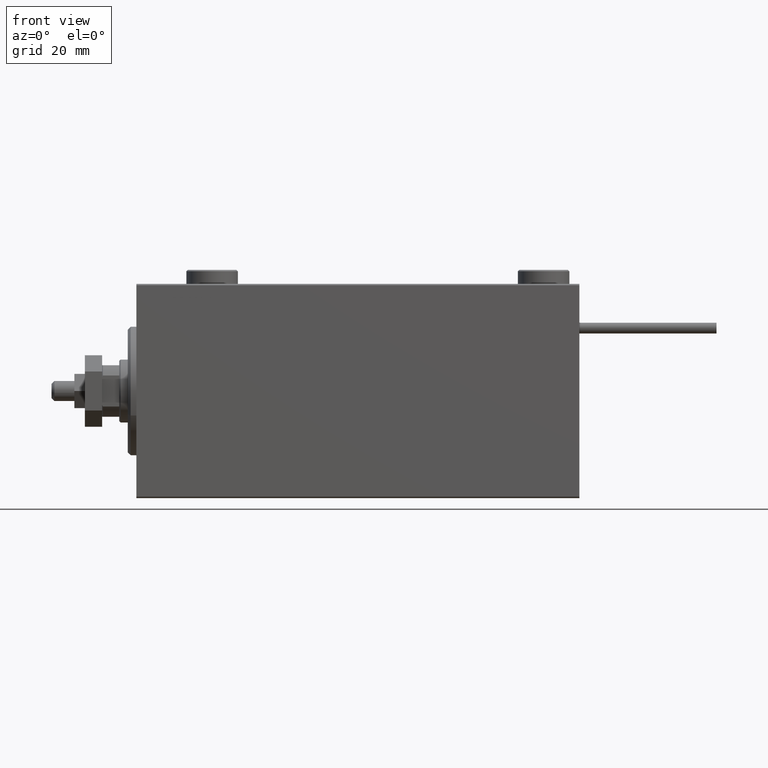
[diagram: clean part render]
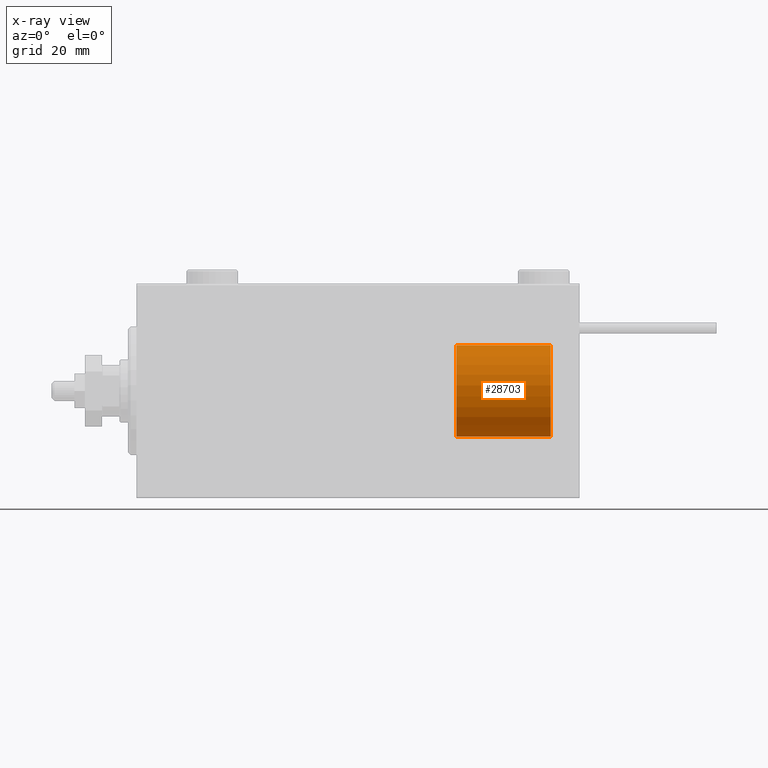
[diagram: x-ray — body ghosted, one internal face saturated and labeled with its STEP entity id]
A machine part, front view, then the same camera in x-ray: the body is ghosted and one INTERNAL B-rep face — a face not visible from any outside direction — is saturated and labeled: STEP entity #28703.
In plain terms, the highlighted cylindrical surface (partial cylindrical patch) has radius 16 mm, axis along (1, -0, -0).
Its self-contained STEP definition (entity closure, byte-faithful):
#1312 = CARTESIAN_POINT ( 'NONE',  ( -16.00000000000000000, 0.000000000000000000, 33.00000000000000000 ) ) ;
#2600 = CARTESIAN_POINT ( 'NONE',  ( -16.00000000000000000, 0.000000000000000000, 33.00000000000000000 ) ) ;
#4866 = CARTESIAN_POINT ( 'NONE',  ( 16.00000000000000000, 1.959434878635765131E-15, 33.00000000000000000 ) ) ;
#4874 = ORIENTED_EDGE ( 'NONE', *, *, #46845, .T. ) ;
#5691 = AXIS2_PLACEMENT_3D ( 'NONE', #17306, #29781, #9989 ) ;
#7223 = VECTOR ( 'NONE', #41724, 1000.000000000000000 ) ;
#9989 = DIRECTION ( 'NONE',  ( 1.000000000000000000, 0.000000000000000000, 0.000000000000000000 ) ) ;
#11800 = VERTEX_POINT ( 'NONE', #12084 ) ;
#12084 = CARTESIAN_POINT ( 'NONE',  ( -16.00000000000000000, 0.000000000000000000, 0.000000000000000000 ) ) ;
#14787 = DIRECTION ( 'NONE',  ( 0.000000000000000000, 0.000000000000000000, 1.000000000000000000 ) ) ;
#15558 = CIRCLE ( 'NONE', #28849, 16.00000000000000000 ) ;
#15750 = DIRECTION ( 'NONE',  ( -0.000000000000000000, -0.000000000000000000, -1.000000000000000000 ) ) ;
#15962 = DIRECTION ( 'NONE',  ( -0.000000000000000000, -0.000000000000000000, -1.000000000000000000 ) ) ;
#16723 = LINE ( 'NONE', #1312, #7223 ) ;
#17306 = CARTESIAN_POINT ( 'NONE',  ( 0.000000000000000000, 0.000000000000000000, 33.00000000000000000 ) ) ;
#18136 = VERTEX_POINT ( 'NONE', #24325 ) ;
#24325 = CARTESIAN_POINT ( 'NONE',  ( 16.00000000000000000, 1.959434878635765131E-15, 0.000000000000000000 ) ) ;
#24415 = AXIS2_PLACEMENT_3D ( 'NONE', #44400, #15750, #39716 ) ;
#24563 = EDGE_CURVE ( 'NONE', #47895, #18136, #47483, .T. ) ;
#25480 = DIRECTION ( 'NONE',  ( 1.000000000000000000, 0.000000000000000000, 0.000000000000000000 ) ) ;
#28486 = FACE_OUTER_BOUND ( 'NONE', #47802, .T. ) ;
#28703 = ADVANCED_FACE ( 'NONE', ( #28486 ), #35536, .T. ) ;
#28849 = AXIS2_PLACEMENT_3D ( 'NONE', #30404, #14787, #25480 ) ;
#29781 = DIRECTION ( 'NONE',  ( 0.000000000000000000, 0.000000000000000000, 1.000000000000000000 ) ) ;
#29815 = ORIENTED_EDGE ( 'NONE', *, *, #40272, .T. ) ;
#30404 = CARTESIAN_POINT ( 'NONE',  ( 0.000000000000000000, 0.000000000000000000, 0.000000000000000000 ) ) ;
#31831 = CARTESIAN_POINT ( 'NONE',  ( 16.00000000000000000, 1.959434878635765131E-15, 33.00000000000000000 ) ) ;
#35536 = CYLINDRICAL_SURFACE ( 'NONE', #24415, 16.00000000000000000 ) ;
#39716 = DIRECTION ( 'NONE',  ( -1.000000000000000000, 0.000000000000000000, 0.000000000000000000 ) ) ;
#40272 = EDGE_CURVE ( 'NONE', #11800, #18136, #15558, .T. ) ;
#41724 = DIRECTION ( 'NONE',  ( -0.000000000000000000, -0.000000000000000000, -1.000000000000000000 ) ) ;
#42126 = VERTEX_POINT ( 'NONE', #2600 ) ;
#44400 = CARTESIAN_POINT ( 'NONE',  ( 0.000000000000000000, 0.000000000000000000, 33.00000000000000000 ) ) ;
#46387 = ORIENTED_EDGE ( 'NONE', *, *, #24563, .F. ) ;
#46845 = EDGE_CURVE ( 'NONE', #42126, #11800, #16723, .T. ) ;
#47483 = LINE ( 'NONE', #31831, #51006 ) ;
#47802 = EDGE_LOOP ( 'NONE', ( #46387, #48004, #4874, #29815 ) ) ;
#47895 = VERTEX_POINT ( 'NONE', #4866 ) ;
#48004 = ORIENTED_EDGE ( 'NONE', *, *, #50594, .F. ) ;
#48971 = CIRCLE ( 'NONE', #5691, 16.00000000000000000 ) ;
#50594 = EDGE_CURVE ( 'NONE', #42126, #47895, #48971, .T. ) ;
#51006 = VECTOR ( 'NONE', #15962, 1000.000000000000000 ) ;